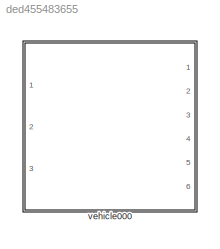
MODEL slx_ded455483655
KIND library
CONFIG AbsTol = auto
CONFIG EnableMultiTasking = off
CONFIG FixedStep = auto
CONFIG MaxStep = auto
CONFIG MinStep = auto
CONFIG RelTol = 1e-3
CONFIG SampleTimeConstraint = Unconstrained
CONFIG Solver = VariableStepAuto
CONFIG SolverName = VariableStepAuto
CONFIG StartTime = 0.0
CONFIG StopTime = 10.0
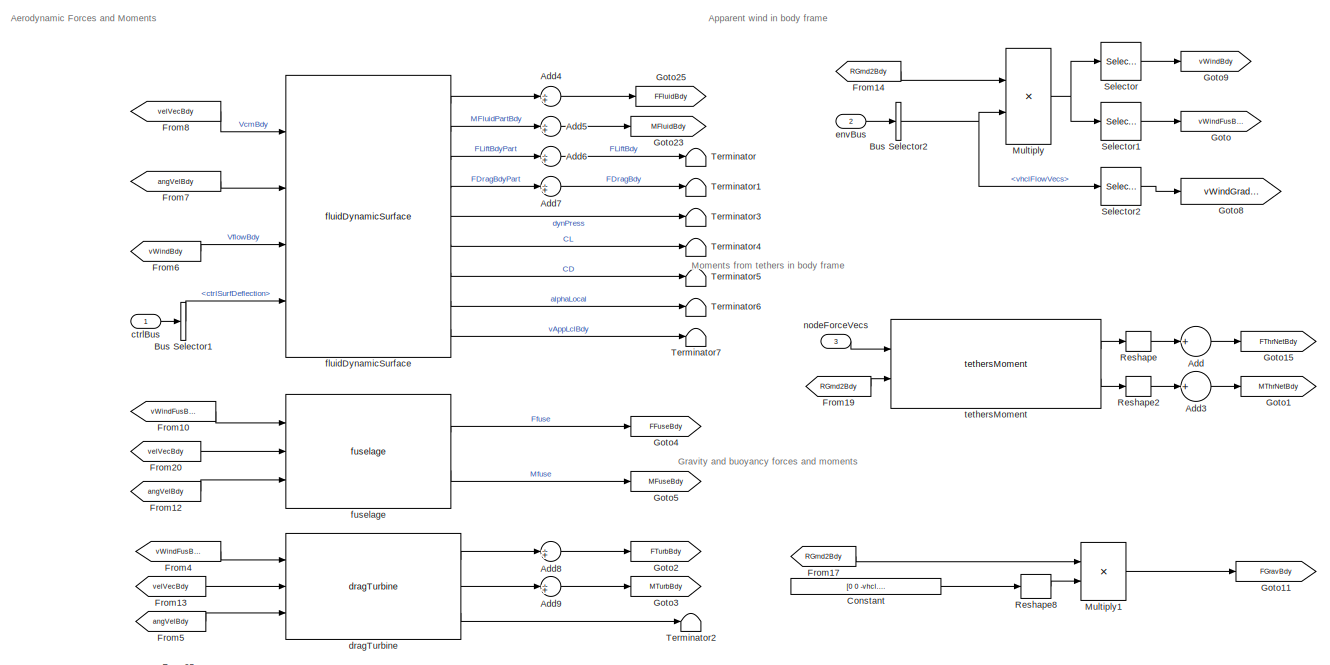
[diagram: vehicle000 - part 1/2, full width, top band]
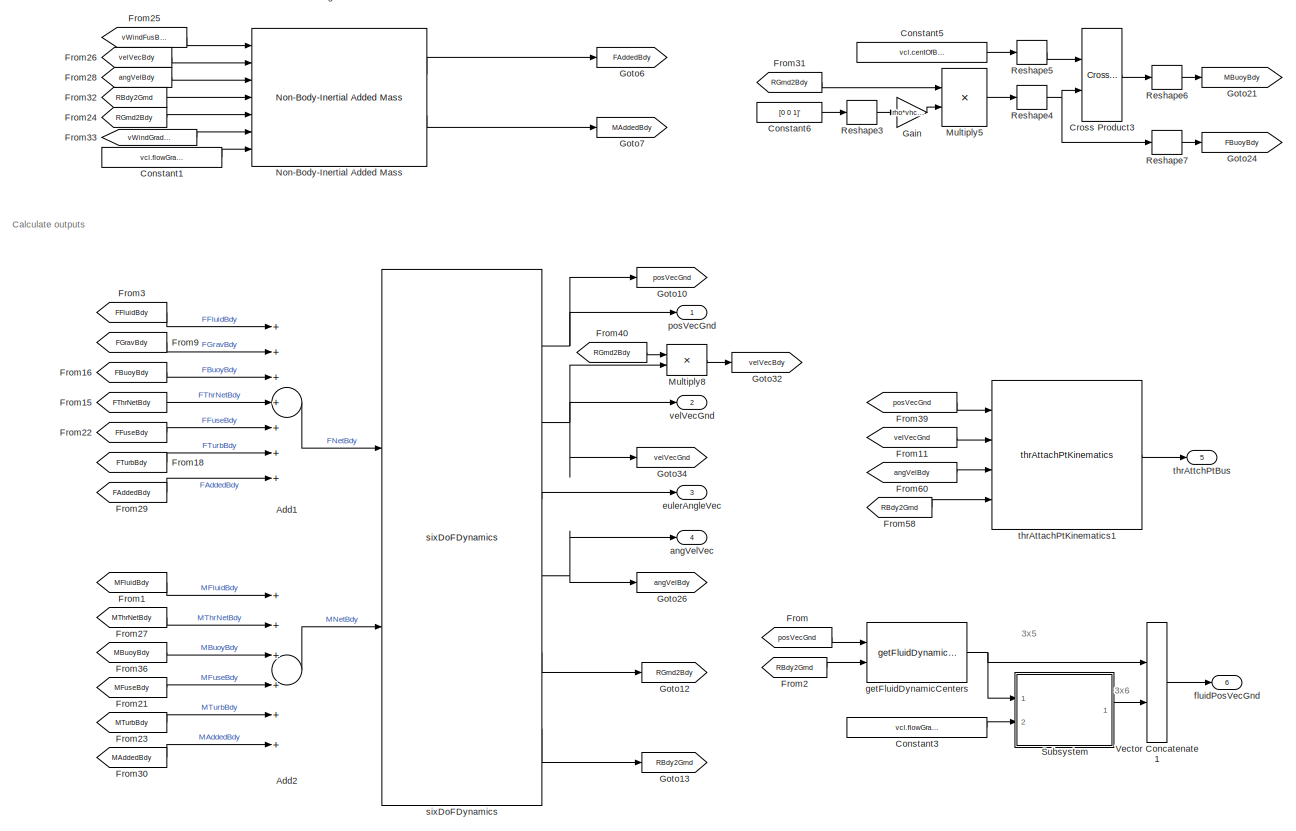
[diagram: vehicle000 - part 2/2, full width, bottom band]
BLOCK [SubSystem] vehicle000
  Ports = [3, 6]
  RequestExecContextInheritance = off
  VariantControl = VSS_vehicle_vehicle000
BLOCK [Sum] vehicle000/Add
  CollapseDim = 2
  CollapseMode = Specified dimension
  InputSameDT = off
  Inputs = +
  OutDataTypeStr = Inherit: Inherit via internal rule
  Ports = [1, 1]
  SaturateOnIntegerOverflow = off
BLOCK [Sum] vehicle000/Add1
  InputSameDT = off
  Inputs = +++++++
  OutDataTypeStr = Inherit: Inherit via internal rule
  Ports = [7, 1]
  SaturateOnIntegerOverflow = off
BLOCK [Sum] vehicle000/Add2
  InputSameDT = off
  Inputs = ++++++
  OutDataTypeStr = Inherit: Inherit via internal rule
  Ports = [6, 1]
  SaturateOnIntegerOverflow = off
BLOCK [Sum] vehicle000/Add3
  CollapseDim = 2
  CollapseMode = Specified dimension
  InputSameDT = off
  Inputs = +
  OutDataTypeStr = Inherit: Inherit via internal rule
  Ports = [1, 1]
  SaturateOnIntegerOverflow = off
BLOCK [Sum] vehicle000/Add4
  CollapseDim = 2
  CollapseMode = Specified dimension
  InputSameDT = off
  Inputs = 1
  OutDataTypeStr = Inherit: Inherit via internal rule
  Ports = [1, 1]
  SaturateOnIntegerOverflow = off
BLOCK [Sum] vehicle000/Add5
  CollapseDim = 2
  CollapseMode = Specified dimension
  InputSameDT = off
  Inputs = 1
  OutDataTypeStr = Inherit: Inherit via internal rule
  Ports = [1, 1]
  SaturateOnIntegerOverflow = off
BLOCK [Sum] vehicle000/Add6
  CollapseDim = 2
  CollapseMode = Specified dimension
  InputSameDT = off
  Inputs = 1
  OutDataTypeStr = Inherit: Inherit via internal rule
  Ports = [1, 1]
  SaturateOnIntegerOverflow = off
BLOCK [Sum] vehicle000/Add7
  CollapseDim = 2
  CollapseMode = Specified dimension
  InputSameDT = off
  Inputs = 1
  OutDataTypeStr = Inherit: Inherit via internal rule
  Ports = [1, 1]
  SaturateOnIntegerOverflow = off
BLOCK [Sum] vehicle000/Add8
  CollapseDim = 2
  CollapseMode = Specified dimension
  InputSameDT = off
  Inputs = 1
  OutDataTypeStr = Inherit: Inherit via internal rule
  Ports = [1, 1]
  SaturateOnIntegerOverflow = off
BLOCK [Sum] vehicle000/Add9
  CollapseDim = 2
  CollapseMode = Specified dimension
  InputSameDT = off
  Inputs = 1
  OutDataTypeStr = Inherit: Inherit via internal rule
  Ports = [1, 1]
  SaturateOnIntegerOverflow = off
BLOCK [BusSelector] vehicle000/Bus Selector1
  OutputAsBus = off
  OutputSignals = ctrlSurfDeflection
  Ports = [1, 1]
BLOCK [BusSelector] vehicle000/Bus Selector2
  OutputAsBus = off
  OutputSignals = vhclFlowVecs
  Ports = [1, 1]
BLOCK [Constant] vehicle000/Constant
  Value = [0 0 -vhcl.mass.Value*grav]
BLOCK [Constant] vehicle000/Constant1
  Value = vcl.flowGradientDist.Value
BLOCK [Constant] vehicle000/Constant3
  Value = vcl.flowGradientDist.Value
BLOCK [Constant] vehicle000/Constant5
  Value = vcl.centOfBuoy.Value
BLOCK [Constant] vehicle000/Constant6
  Value = [0 0 1]'
BLOCK [Reference] vehicle000/Cross Product3  REF=vrlib/Utilities/Cross Product
  Ports = [2, 1]
  SourceBlock = vrlib/Utilities/Cross Product
  SourceProductBaseCode = VR
  SourceProductName = Simulink 3D Animation
  SourceType = Cross Product
BLOCK [From] vehicle000/From
  GotoTag = posVecGnd
BLOCK [From] vehicle000/From1
  GotoTag = MFluidBdy
BLOCK [From] vehicle000/From10
  GotoTag = vWindFusBdy
BLOCK [From] vehicle000/From11
  GotoTag = velVecGnd
BLOCK [From] vehicle000/From12
  GotoTag = angVelBdy
BLOCK [From] vehicle000/From13
  GotoTag = velVecBdy
BLOCK [From] vehicle000/From14
  GotoTag = RGrnd2Bdy
BLOCK [From] vehicle000/From15
  GotoTag = FThrNetBdy
BLOCK [From] vehicle000/From16
  GotoTag = FBuoyBdy
BLOCK [From] vehicle000/From17
  GotoTag = RGrnd2Bdy
BLOCK [From] vehicle000/From18
  GotoTag = FTurbBdy
BLOCK [From] vehicle000/From19
  GotoTag = RGrnd2Bdy
BLOCK [From] vehicle000/From2
  GotoTag = RBdy2Grnd
BLOCK [From] vehicle000/From20
  GotoTag = velVecBdy
BLOCK [From] vehicle000/From21
  GotoTag = MFuseBdy
BLOCK [From] vehicle000/From22
  GotoTag = FFuseBdy
BLOCK [From] vehicle000/From23
  GotoTag = MTurbBdy
BLOCK [From] vehicle000/From24
  GotoTag = RGrnd2Bdy
BLOCK [From] vehicle000/From25
  GotoTag = vWindFusBdy
BLOCK [From] vehicle000/From26
  GotoTag = velVecBdy
BLOCK [From] vehicle000/From27
  GotoTag = MThrNetBdy
BLOCK [From] vehicle000/From28
  GotoTag = angVelBdy
BLOCK [From] vehicle000/From29
  GotoTag = FAddedBdy
BLOCK [From] vehicle000/From3
  GotoTag = FFluidBdy
BLOCK [From] vehicle000/From30
  GotoTag = MAddedBdy
BLOCK [From] vehicle000/From31
  GotoTag = RGrnd2Bdy
BLOCK [From] vehicle000/From32
  GotoTag = RBdy2Grnd
BLOCK [From] vehicle000/From33
  GotoTag = vWindGradGrnd
BLOCK [From] vehicle000/From36
  GotoTag = MBuoyBdy
BLOCK [From] vehicle000/From39
  GotoTag = posVecGnd
BLOCK [From] vehicle000/From4
  GotoTag = vWindFusBdy
BLOCK [From] vehicle000/From40
  GotoTag = RGrnd2Bdy
BLOCK [From] vehicle000/From5
  GotoTag = angVelBdy
BLOCK [From] vehicle000/From58
  GotoTag = RBdy2Grnd
BLOCK [From] vehicle000/From6
  GotoTag = vWindBdy
BLOCK [From] vehicle000/From60
  GotoTag = angVelBdy
BLOCK [From] vehicle000/From7
  GotoTag = angVelBdy
BLOCK [From] vehicle000/From8
  GotoTag = velVecBdy
BLOCK [From] vehicle000/From9
  GotoTag = FGravBdy
BLOCK [Gain] vehicle000/Gain
  Gain = rho*vhcl.volume.Value*grav
  OutDataTypeStr = Inherit: Inherit via internal rule
  ParamDataTypeStr = Inherit: Inherit via internal rule
  SaturateOnIntegerOverflow = off
BLOCK [Goto] vehicle000/Goto
  GotoTag = vWindFusBdy
BLOCK [Goto] vehicle000/Goto1
  GotoTag = MThrNetBdy
BLOCK [Goto] vehicle000/Goto10
  GotoTag = posVecGnd
BLOCK [Goto] vehicle000/Goto11
  GotoTag = FGravBdy
BLOCK [Goto] vehicle000/Goto12
  GotoTag = RGrnd2Bdy
BLOCK [Goto] vehicle000/Goto13
  GotoTag = RBdy2Grnd
BLOCK [Goto] vehicle000/Goto15
  GotoTag = FThrNetBdy
BLOCK [Goto] vehicle000/Goto2
  GotoTag = FTurbBdy
BLOCK [Goto] vehicle000/Goto21
  GotoTag = MBuoyBdy
BLOCK [Goto] vehicle000/Goto23
  GotoTag = MFluidBdy
BLOCK [Goto] vehicle000/Goto24
  GotoTag = FBuoyBdy
BLOCK [Goto] vehicle000/Goto25
  GotoTag = FFluidBdy
BLOCK [Goto] vehicle000/Goto26
  GotoTag = angVelBdy
BLOCK [Goto] vehicle000/Goto3
  GotoTag = MTurbBdy
BLOCK [Goto] vehicle000/Goto32
  GotoTag = velVecBdy
BLOCK [Goto] vehicle000/Goto34
  GotoTag = velVecGnd
BLOCK [Goto] vehicle000/Goto4
  GotoTag = FFuseBdy
BLOCK [Goto] vehicle000/Goto5
  GotoTag = MFuseBdy
BLOCK [Goto] vehicle000/Goto6
  GotoTag = FAddedBdy
BLOCK [Goto] vehicle000/Goto7
  GotoTag = MAddedBdy
BLOCK [Goto] vehicle000/Goto8
  GotoTag = vWindGradGrnd
BLOCK [Goto] vehicle000/Goto9
  GotoTag = vWindBdy
BLOCK [Product] vehicle000/Multiply
  InputSameDT = off
  Multiplication = Matrix(*)
  OutDataTypeStr = Inherit: Inherit via internal rule
  Ports = [2, 1]
  RndMeth = Floor
  SaturateOnIntegerOverflow = off
BLOCK [Product] vehicle000/Multiply1
  InputSameDT = off
  Multiplication = Matrix(*)
  OutDataTypeStr = Inherit: Inherit via internal rule
  Ports = [2, 1]
  RndMeth = Floor
  SaturateOnIntegerOverflow = off
BLOCK [Product] vehicle000/Multiply5
  InputSameDT = off
  Multiplication = Matrix(*)
  OutDataTypeStr = Inherit: Inherit via internal rule
  Ports = [2, 1]
  RndMeth = Floor
  SaturateOnIntegerOverflow = off
BLOCK [Product] vehicle000/Multiply8
  InputSameDT = off
  Multiplication = Matrix(*)
  OutDataTypeStr = Inherit: Inherit via internal rule
  Ports = [2, 1]
  RndMeth = Floor
  SaturateOnIntegerOverflow = off
BLOCK [Reference] vehicle000/Non-Body-Inertial Added Mass  REF=addedMass_cl/Non-Body-Inertial Added Mass
  Ports = [7, 2]
  SourceBlock = addedMass_cl/Non-Body-Inertial Added Mass
BLOCK [Reshape] vehicle000/Reshape
  OutputDimensionality = Customize
  OutputDimensions = [3 vcl.numTethers.Value]
  Ports = [1, 1]
BLOCK [Reshape] vehicle000/Reshape2
  OutputDimensionality = Customize
  OutputDimensions = [3 vcl.numTethers.Value]
  Ports = [1, 1]
BLOCK [Reshape] vehicle000/Reshape3
  OutputDimensionality = Column vector (2-D)
  Ports = [1, 1]
BLOCK [Reshape] vehicle000/Reshape4
  OutputDimensionality = Column vector (2-D)
  Ports = [1, 1]
BLOCK [Reshape] vehicle000/Reshape5
  OutputDimensionality = Column vector (2-D)
  Ports = [1, 1]
BLOCK [Reshape] vehicle000/Reshape6
  OutputDimensionality = Column vector (2-D)
  Ports = [1, 1]
BLOCK [Reshape] vehicle000/Reshape7
  OutputDimensionality = Column vector (2-D)
  Ports = [1, 1]
BLOCK [Reshape] vehicle000/Reshape8
  OutputDimensionality = Column vector (2-D)
  Ports = [1, 1]
BLOCK [Selector] vehicle000/Selector
  IndexOptions = Select all,Index vector (dialog)
  Indices = [1 3],1:4
  InputPortWidth = 3
  NumberOfDimensions = 2
  OutputSizes = 1,1
  Ports = [1, 1]
BLOCK [Selector] vehicle000/Selector1
  IndexOptions = Select all,Index vector (dialog)
  Indices = [1 3],5
  InputPortWidth = 3
  NumberOfDimensions = 2
  OutputSizes = 1,1
  Ports = [1, 1]
BLOCK [Selector] vehicle000/Selector2
  IndexOptions = Select all,Index vector (dialog)
  Indices = [1 3],6:11
  InputPortWidth = 3
  NumberOfDimensions = 2
  OutputSizes = 1,1
  Ports = [1, 1]
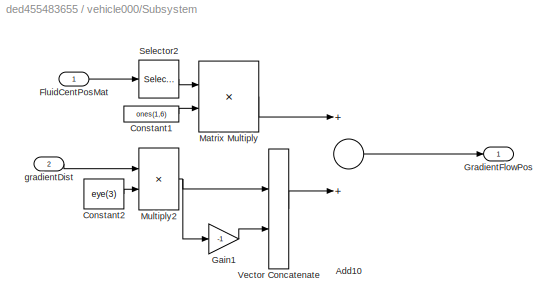
BLOCK [SubSystem] vehicle000/Subsystem
  Ports = [2, 1]
  RequestExecContextInheritance = off
BLOCK [Sum] vehicle000/Subsystem/Add10
  InputSameDT = off
  OutDataTypeStr = Inherit: Inherit via internal rule
  Ports = [2, 1]
  SaturateOnIntegerOverflow = off
BLOCK [Constant] vehicle000/Subsystem/Constant1
  Value = ones(1,6)
  VectorParams1D = off
BLOCK [Constant] vehicle000/Subsystem/Constant2
  Value = eye(3)
BLOCK [Inport] vehicle000/Subsystem/FluidCentPosMat
  IconDisplay = Port number
BLOCK [Gain] vehicle000/Subsystem/Gain1
  Gain = -1
  OutDataTypeStr = Inherit: Inherit via internal rule
  ParamDataTypeStr = Inherit: Inherit via internal rule
  SaturateOnIntegerOverflow = off
BLOCK [Outport] vehicle000/Subsystem/GradientFlowPos
  IconDisplay = Port number
BLOCK [Product] vehicle000/Subsystem/Matrix Multiply
  InputSameDT = off
  Multiplication = Matrix(*)
  OutDataTypeStr = Inherit: Inherit via internal rule
  Ports = [2, 1]
  RndMeth = Floor
  SaturateOnIntegerOverflow = off
BLOCK [Product] vehicle000/Subsystem/Multiply2
  InputSameDT = off
  OutDataTypeStr = Inherit: Inherit via internal rule
  Ports = [2, 1]
  RndMeth = Floor
  SaturateOnIntegerOverflow = off
BLOCK [Selector] vehicle000/Subsystem/Selector2
  IndexOptions = Select all,Index vector (dialog)
  Indices = [1 3],5
  InputPortWidth = 3
  NumberOfDimensions = 2
  OutputSizes = 1,1
  Ports = [1, 1]
BLOCK [Concatenate] vehicle000/Subsystem/Vector Concatenate
  ConcatenateDimension = 2
  Mode = Multidimensional array
  Ports = [2, 1]
BLOCK [Inport] vehicle000/Subsystem/gradientDist
  IconDisplay = Port number
  Port = 2
BLOCK [Terminator] vehicle000/Terminator
BLOCK [Terminator] vehicle000/Terminator1
BLOCK [Terminator] vehicle000/Terminator2
BLOCK [Terminator] vehicle000/Terminator3
BLOCK [Terminator] vehicle000/Terminator4
BLOCK [Terminator] vehicle000/Terminator5
BLOCK [Terminator] vehicle000/Terminator6
BLOCK [Terminator] vehicle000/Terminator7
BLOCK [Concatenate] vehicle000/Vector Concatenate1
  ConcatenateDimension = 2
  Mode = Multidimensional array
  Ports = [2, 1]
BLOCK [Outport] vehicle000/angVelVec
  IconDisplay = Port number
  Port = 4
BLOCK [Inport] vehicle000/ctrlBus
  IconDisplay = Port number
  OutDataTypeStr = Bus: fltCtrlBus
BLOCK [Reference] vehicle000/dragTurbine  REF=dragTurbine_ul/dragTurbine
  Ports = [3, 3]
  SourceBlock = dragTurbine_ul/dragTurbine
BLOCK [Inport] vehicle000/envBus
  IconDisplay = Port number
  OutDataTypeStr = Bus: envBus
  Port = 2
BLOCK [Outport] vehicle000/eulerAngleVec
  IconDisplay = Port number
  Port = 3
BLOCK [Reference] vehicle000/fluidDynamicSurface  REF=fluidDynamicSurface_cl/fluidDynamicSurface
  Ports = [4, 9]
  SourceBlock = fluidDynamicSurface_cl/fluidDynamicSurface
BLOCK [Outport] vehicle000/fluidPosVecGnd
  IconDisplay = Port number
  Port = 6
BLOCK [Reference] vehicle000/fuselage  REF=fuselage_cl/fuselage  (lib defined in slx_45091b95913d, slx_54a95fec013f)
  Ports = [3, 2]
  SourceBlock = fuselage_cl/fuselage
BLOCK [Reference] vehicle000/getFluidDynamicCenters  REF=getFluidDynamicCenters_ul/getFluidDynamicCenters
  Ports = [2, 1]
  SourceBlock = getFluidDynamicCenters_ul/getFluidDynamicCenters
BLOCK [Inport] vehicle000/nodeForceVecs
  IconDisplay = Port number
  Port = 3
BLOCK [Outport] vehicle000/posVecGnd
  IconDisplay = Port number
BLOCK [Reference] vehicle000/sixDoFDynamics  REF=sixDoFDynamics_cl/sixDoFDynamics
  Ports = [2, 6]
  SourceBlock = sixDoFDynamics_cl/sixDoFDynamics
BLOCK [Reference] vehicle000/tethersMoment  REF=tethersMoment_cl/tethersMoment
  Ports = [2, 2]
  SourceBlock = tethersMoment_cl/tethersMoment
BLOCK [Reference] vehicle000/thrAttachPtKinematics1  REF=thrAttachPtKinematics_ul/thrAttachPtKinematics
  Ports = [4, 1]
  SourceBlock = thrAttachPtKinematics_ul/thrAttachPtKinematics
BLOCK [Outport] vehicle000/thrAttchPtBus
  IconDisplay = Port number
  Port = 5
BLOCK [Outport] vehicle000/velVecGnd
  IconDisplay = Port number
  Port = 2
ANNOTATION vehicle000: 3x5
ANNOTATION vehicle000: 3x6
ANNOTATION vehicle000: Aerodynamic Forces and Moments
ANNOTATION vehicle000: Apparent wind in body frame
ANNOTATION vehicle000: Calculate outputs
ANNOTATION vehicle000: Gravity and buoyancy forces and moments
ANNOTATION vehicle000: Moments from tethers in body frame
LINE vehicle000/Add1:1 -> vehicle000/sixDoFDynamics:1
LINE vehicle000/Add2:1 -> vehicle000/sixDoFDynamics:2
LINE vehicle000/Add3:1 -> vehicle000/Goto1:1
LINE vehicle000/Add4:1 -> vehicle000/Goto25:1
LINE vehicle000/Add5:1 -> vehicle000/Goto23:1
LINE vehicle000/Add6:1 -> vehicle000/Terminator:1
LINE vehicle000/Add7:1 -> vehicle000/Terminator1:1
LINE vehicle000/Add8:1 -> vehicle000/Goto2:1
LINE vehicle000/Add9:1 -> vehicle000/Goto3:1
LINE vehicle000/Add:1 -> vehicle000/Goto15:1
LINE vehicle000/Bus Selector1:1 -> vehicle000/fluidDynamicSurface:4
NET vehicle000/Bus Selector2:1 -> vehicle000/Multiply:2, vehicle000/Selector2:1
LINE vehicle000/Constant1:1 -> vehicle000/Non-Body-Inertial Added Mass:7
LINE vehicle000/Constant3:1 -> vehicle000/Subsystem:2
LINE vehicle000/Constant5:1 -> vehicle000/Reshape5:1
LINE vehicle000/Constant6:1 -> vehicle000/Reshape3:1
LINE vehicle000/Constant:1 -> vehicle000/Reshape8:1
LINE vehicle000/Cross Product3:1 -> vehicle000/Reshape6:1
LINE vehicle000/From10:1 -> vehicle000/fuselage:1
LINE vehicle000/From11:1 -> vehicle000/thrAttachPtKinematics1:2
LINE vehicle000/From12:1 -> vehicle000/fuselage:3
LINE vehicle000/From13:1 -> vehicle000/dragTurbine:2
LINE vehicle000/From14:1 -> vehicle000/Multiply:1
LINE vehicle000/From15:1 -> vehicle000/Add1:4
LINE vehicle000/From16:1 -> vehicle000/Add1:3
LINE vehicle000/From17:1 -> vehicle000/Multiply1:1
LINE vehicle000/From18:1 -> vehicle000/Add1:6
LINE vehicle000/From19:1 -> vehicle000/tethersMoment:2
LINE vehicle000/From1:1 -> vehicle000/Add2:1
LINE vehicle000/From20:1 -> vehicle000/fuselage:2
LINE vehicle000/From21:1 -> vehicle000/Add2:4
LINE vehicle000/From22:1 -> vehicle000/Add1:5
LINE vehicle000/From23:1 -> vehicle000/Add2:5
LINE vehicle000/From24:1 -> vehicle000/Non-Body-Inertial Added Mass:5
LINE vehicle000/From25:1 -> vehicle000/Non-Body-Inertial Added Mass:1
LINE vehicle000/From26:1 -> vehicle000/Non-Body-Inertial Added Mass:2
LINE vehicle000/From27:1 -> vehicle000/Add2:2
LINE vehicle000/From28:1 -> vehicle000/Non-Body-Inertial Added Mass:3
LINE vehicle000/From29:1 -> vehicle000/Add1:7
LINE vehicle000/From2:1 -> vehicle000/getFluidDynamicCenters:2
LINE vehicle000/From30:1 -> vehicle000/Add2:6
LINE vehicle000/From31:1 -> vehicle000/Multiply5:1
LINE vehicle000/From32:1 -> vehicle000/Non-Body-Inertial Added Mass:4
LINE vehicle000/From33:1 -> vehicle000/Non-Body-Inertial Added Mass:6
LINE vehicle000/From36:1 -> vehicle000/Add2:3
LINE vehicle000/From39:1 -> vehicle000/thrAttachPtKinematics1:1
LINE vehicle000/From3:1 -> vehicle000/Add1:1
LINE vehicle000/From40:1 -> vehicle000/Multiply8:1
LINE vehicle000/From4:1 -> vehicle000/dragTurbine:1
LINE vehicle000/From58:1 -> vehicle000/thrAttachPtKinematics1:4
LINE vehicle000/From5:1 -> vehicle000/dragTurbine:3
LINE vehicle000/From60:1 -> vehicle000/thrAttachPtKinematics1:3
LINE vehicle000/From6:1 -> vehicle000/fluidDynamicSurface:3
LINE vehicle000/From7:1 -> vehicle000/fluidDynamicSurface:2
LINE vehicle000/From8:1 -> vehicle000/fluidDynamicSurface:1
LINE vehicle000/From9:1 -> vehicle000/Add1:2
LINE vehicle000/From:1 -> vehicle000/getFluidDynamicCenters:1
LINE vehicle000/Gain:1 -> vehicle000/Multiply5:2
LINE vehicle000/Multiply1:1 -> vehicle000/Goto11:1
LINE vehicle000/Multiply5:1 -> vehicle000/Reshape4:1
LINE vehicle000/Multiply8:1 -> vehicle000/Goto32:1
NET vehicle000/Multiply:1 -> vehicle000/Selector1:1, vehicle000/Selector:1
LINE vehicle000/Non-Body-Inertial Added Mass:1 -> vehicle000/Goto6:1
LINE vehicle000/Non-Body-Inertial Added Mass:2 -> vehicle000/Goto7:1
LINE vehicle000/Reshape2:1 -> vehicle000/Add3:1
LINE vehicle000/Reshape3:1 -> vehicle000/Gain:1
NET vehicle000/Reshape4:1 -> vehicle000/Cross Product3:2, vehicle000/Reshape7:1
LINE vehicle000/Reshape5:1 -> vehicle000/Cross Product3:1
LINE vehicle000/Reshape6:1 -> vehicle000/Goto21:1
LINE vehicle000/Reshape7:1 -> vehicle000/Goto24:1
LINE vehicle000/Reshape8:1 -> vehicle000/Multiply1:2
LINE vehicle000/Reshape:1 -> vehicle000/Add:1
LINE vehicle000/Selector1:1 -> vehicle000/Goto:1
LINE vehicle000/Selector2:1 -> vehicle000/Goto8:1
LINE vehicle000/Selector:1 -> vehicle000/Goto9:1
LINE vehicle000/Subsystem/Add10:1 -> vehicle000/Subsystem/GradientFlowPos:1
LINE vehicle000/Subsystem/Constant1:1 -> vehicle000/Subsystem/Matrix Multiply:2
LINE vehicle000/Subsystem/Constant2:1 -> vehicle000/Subsystem/Multiply2:2
LINE vehicle000/Subsystem/FluidCentPosMat:1 -> vehicle000/Subsystem/Selector2:1
LINE vehicle000/Subsystem/Gain1:1 -> vehicle000/Subsystem/Vector Concatenate:2
LINE vehicle000/Subsystem/Matrix Multiply:1 -> vehicle000/Subsystem/Add10:1
NET vehicle000/Subsystem/Multiply2:1 -> vehicle000/Subsystem/Gain1:1, vehicle000/Subsystem/Vector Concatenate:1
LINE vehicle000/Subsystem/Selector2:1 -> vehicle000/Subsystem/Matrix Multiply:1
LINE vehicle000/Subsystem/Vector Concatenate:1 -> vehicle000/Subsystem/Add10:2
LINE vehicle000/Subsystem/gradientDist:1 -> vehicle000/Subsystem/Multiply2:1
LINE vehicle000/Subsystem:1 -> vehicle000/Vector Concatenate1:2
LINE vehicle000/Vector Concatenate1:1 -> vehicle000/fluidPosVecGnd:1
LINE vehicle000/ctrlBus:1 -> vehicle000/Bus Selector1:1
LINE vehicle000/dragTurbine:1 -> vehicle000/Add8:1
LINE vehicle000/dragTurbine:2 -> vehicle000/Add9:1
LINE vehicle000/dragTurbine:3 -> vehicle000/Terminator2:1
LINE vehicle000/envBus:1 -> vehicle000/Bus Selector2:1
LINE vehicle000/fluidDynamicSurface:1 -> vehicle000/Add4:1
LINE vehicle000/fluidDynamicSurface:2 -> vehicle000/Add5:1
LINE vehicle000/fluidDynamicSurface:3 -> vehicle000/Add6:1
LINE vehicle000/fluidDynamicSurface:4 -> vehicle000/Add7:1
LINE vehicle000/fluidDynamicSurface:5 -> vehicle000/Terminator3:1
LINE vehicle000/fluidDynamicSurface:6 -> vehicle000/Terminator4:1
LINE vehicle000/fluidDynamicSurface:7 -> vehicle000/Terminator5:1
LINE vehicle000/fluidDynamicSurface:8 -> vehicle000/Terminator6:1
LINE vehicle000/fluidDynamicSurface:9 -> vehicle000/Terminator7:1
LINE vehicle000/fuselage:1 -> vehicle000/Goto4:1
LINE vehicle000/fuselage:2 -> vehicle000/Goto5:1
NET vehicle000/getFluidDynamicCenters:1 -> vehicle000/Subsystem:1, vehicle000/Vector Concatenate1:1
LINE vehicle000/nodeForceVecs:1 -> vehicle000/tethersMoment:1
NET vehicle000/sixDoFDynamics:1 -> vehicle000/Goto10:1, vehicle000/posVecGnd:1
NET vehicle000/sixDoFDynamics:2 -> vehicle000/Goto34:1, vehicle000/Multiply8:2, vehicle000/velVecGnd:1
LINE vehicle000/sixDoFDynamics:3 -> vehicle000/eulerAngleVec:1
NET vehicle000/sixDoFDynamics:4 -> vehicle000/Goto26:1, vehicle000/angVelVec:1
LINE vehicle000/sixDoFDynamics:5 -> vehicle000/Goto12:1
LINE vehicle000/sixDoFDynamics:6 -> vehicle000/Goto13:1
LINE vehicle000/tethersMoment:1 -> vehicle000/Reshape:1
LINE vehicle000/tethersMoment:2 -> vehicle000/Reshape2:1
LINE vehicle000/thrAttachPtKinematics1:1 -> vehicle000/thrAttchPtBus:1
note: NET lines group one-source signal fan-out (src -> all destinations, sorted); 1:1 wires keep LINE
